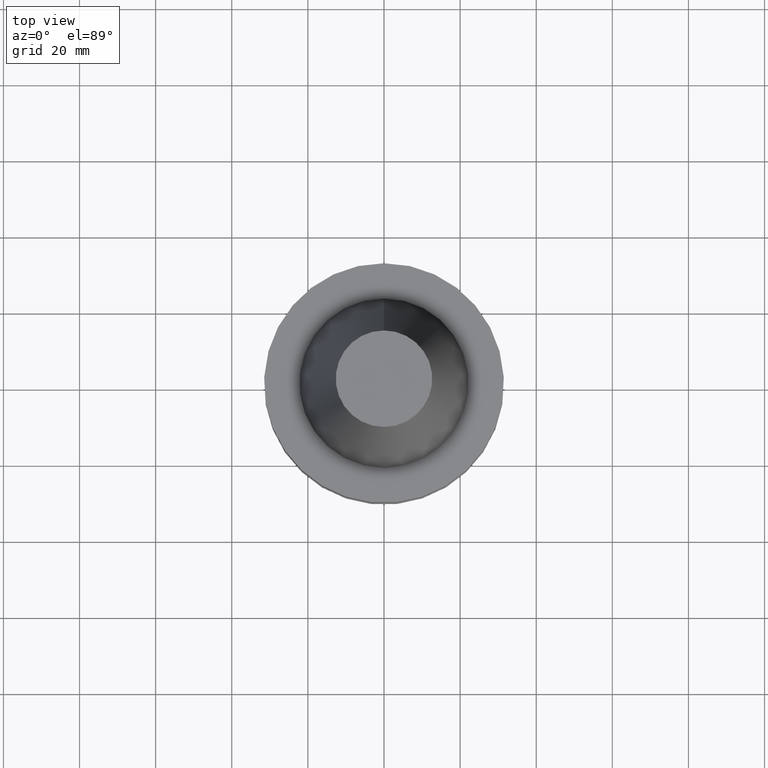
[diagram: clean part render]
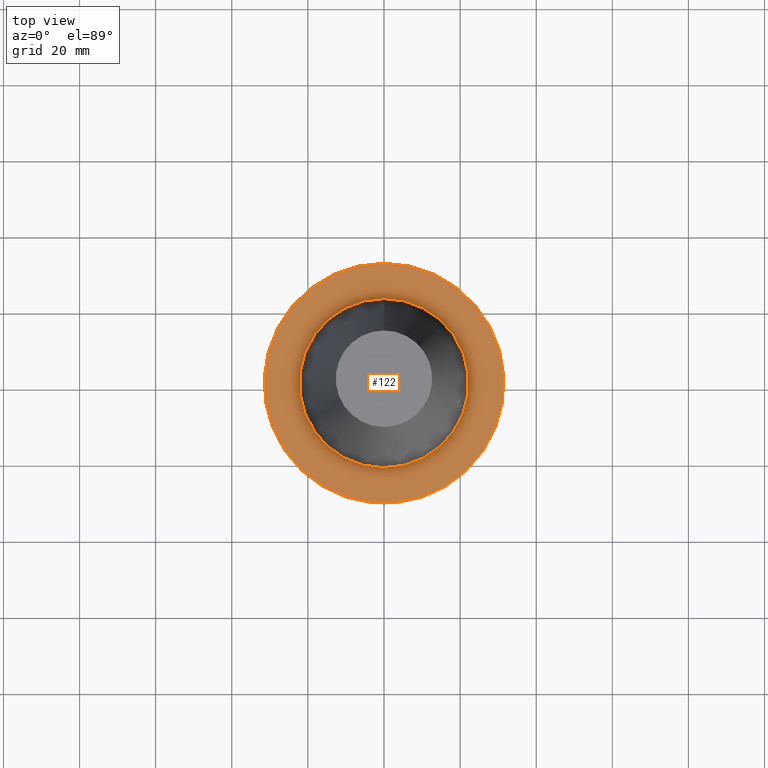
[diagram: same view with one face highlighted and labeled with its STEP entity id]
A machine part, top view. The second image highlights one B-rep face of the part: STEP entity #122.
In plain terms, the highlighted planar face has unit normal (-0, -0, 1).
Its self-contained STEP definition (entity closure, byte-faithful):
#122=ADVANCED_FACE('Unnamed[1]',(#270,#271),#272,.T.);
#126=EDGE_CURVE('Unnamed[1]',#277,#277,#278,.T.);
#156=EDGE_CURVE('Unnamed[1]',#326,#326,#327,.T.);
#270=FACE_OUTER_BOUND('',#463,.T.);
#271=FACE_BOUND('',#464,.T.);
#272=PLANE('',#465);
#277=VERTEX_POINT('',#472);
#278=CIRCLE('',#473,31.4999999999996);
#326=VERTEX_POINT('',#532);
#327=CIRCLE('',#533,22.225);
#463=EDGE_LOOP('',(#656));
#464=EDGE_LOOP('',(#657));
#465=AXIS2_PLACEMENT_3D('',#658,#659,#660);
#472=CARTESIAN_POINT('',(6.12323399573568E-017,31.4999999999997,-0.999999999999825));
#473=AXIS2_PLACEMENT_3D('',#664,#665,#666);
#532=CARTESIAN_POINT('',(6.12323399573622E-017,22.2250000000001,-0.999999999999912));
#533=AXIS2_PLACEMENT_3D('',#721,#722,#723);
#656=ORIENTED_EDGE('',*,*,#126,.F.);
#657=ORIENTED_EDGE('',*,*,#156,.T.);
#658=CARTESIAN_POINT('',(6.12323399573595E-017,26.8624999999999,-0.999999999999869));
#659=DIRECTION('',(-6.12323399573677E-017,-9.35138060429241E-015,1.0));
#660=DIRECTION('',(5.77434068963536E-031,-1.0,-9.35138060429241E-015));
#664=CARTESIAN_POINT('',(6.12323399573563E-017,6.83498163790438E-014,-0.999999999999815));
#665=DIRECTION('',(6.12323399573677E-017,-1.30838707338549E-016,-1.0));
#666=DIRECTION('',(3.1844074765737E-033,1.0,-1.30838707338549E-016));
#721=CARTESIAN_POINT('',(6.12323399573624E-017,6.83498163790438E-014,-0.999999999999915));
#722=DIRECTION('',(6.12323399573677E-017,-1.30838707338578E-016,-1.0));
#723=DIRECTION('',(3.18440747656501E-033,1.0,-1.30838707338578E-016));